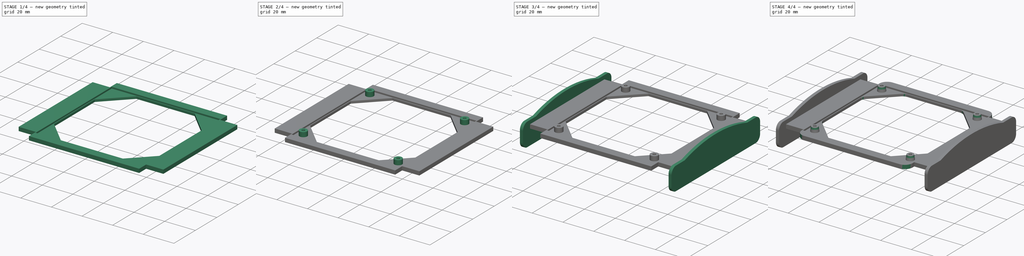
[diagram: build sequence overview — one tinted view per stage of 4, left to right]
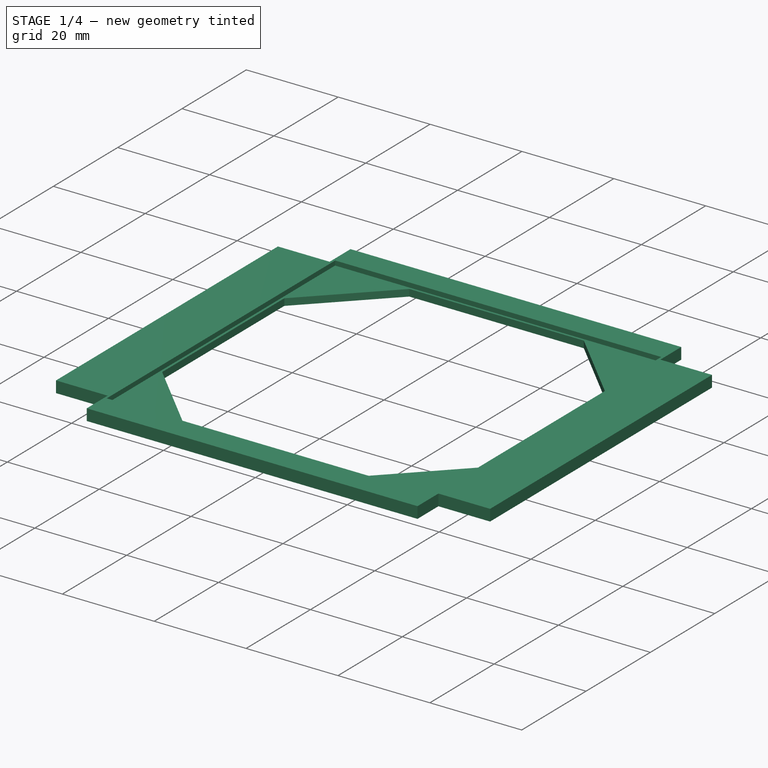
[diagram: stage 1 of 4 — iso view after this stage's code; geometry added in this stage tinted green]
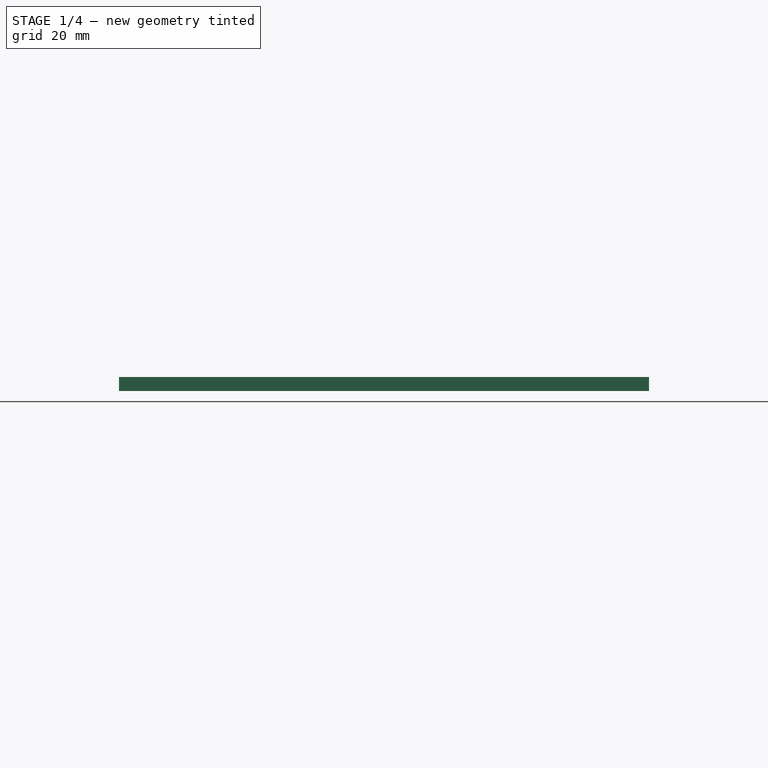
[diagram: stage 1 of 4 — front view after this stage's code; geometry added in this stage tinted green]
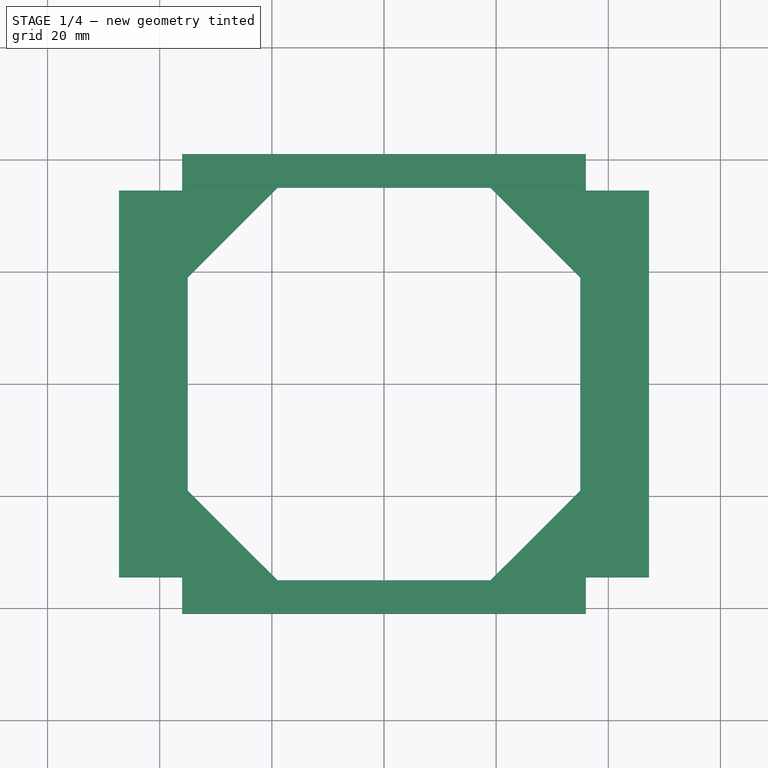
[diagram: stage 1 of 4 — top view after this stage's code; geometry added in this stage tinted green]
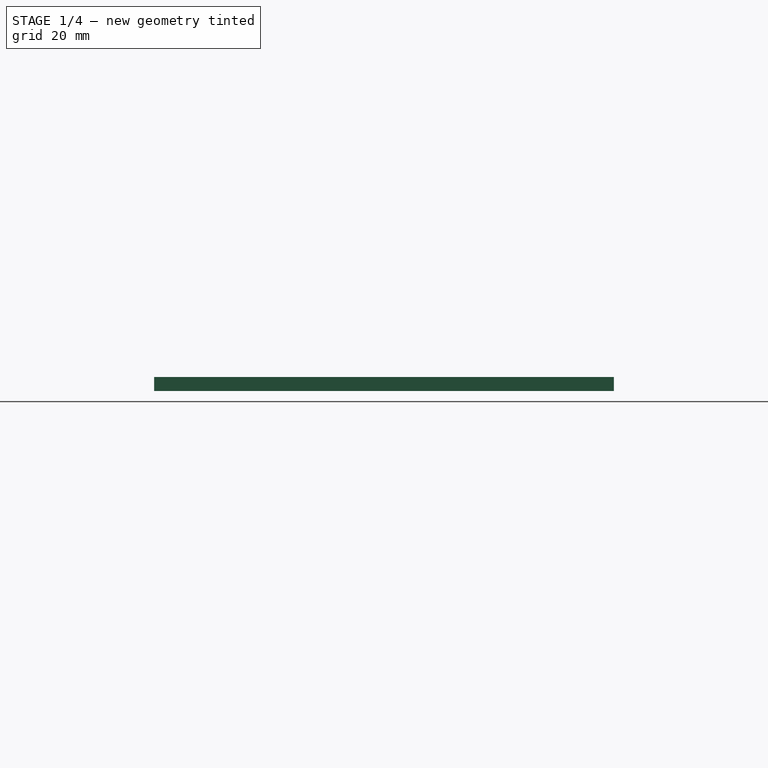
[diagram: stage 1 of 4 — right view after this stage's code; geometry added in this stage tinted green]
FCSTD DOCUMENT  (FreeCAD 0.17R13509 (Git))
Label: Support Fan CoolMaster 70mmx70mm
License: CreativeCommons Attribution-ShareAlike
LicenseURL: http://creativecommons.org/licenses/by-sa/4.0/
objects: Sketcher::SketchObject×5, PartDesign::Pad×3, PartDesign::Pocket×2, PartDesign::Fillet×2, PartDesign::Plane×1, PartDesign::Mirrored×1, PartDesign::Draft×1, PartDesign::Body×1, App::Part×1
note: 21 computed .brp shape members not serialized (recipe doc carries the construction recipe); baked Part::Feature solids carry a one-line shape summary decoded from their .brp

FEATURE [PartDesign::Plane] DatumPlane
  AttachmentOffset = pos=(0,0,45) rot=(0,0,1;0rad)
  MapMode = 5
  Placement = pos=(0,0,45) rot=(0,0,1;0rad)
  Support = -> [XY_Plane003]
FEATURE [Sketcher::SketchObject] Sketch006
  MapMode = 5
  Placement = pos=(0,0,45) rot=(0,0,1;0rad)
  Support = -> [DatumPlane]
  sketch-geometry (20):
    g0: LineSegment StartX=-47.25 StartY=34.5 StartZ=0 EndX=-36 EndY=34.5 EndZ=0
    g1: LineSegment StartX=47.25 StartY=34.5 StartZ=0 EndX=47.25 EndY=-34.5 EndZ=0
    g2: LineSegment StartX=47.25 StartY=-34.5 StartZ=0 EndX=36 EndY=-34.5 EndZ=0
    g3: LineSegment StartX=-47.25 StartY=-34.5 StartZ=0 EndX=-47.25 EndY=34.5 EndZ=0
    g4: LineSegment StartX=-36 StartY=41 StartZ=0 EndX=36 EndY=41 EndZ=0
    g5: LineSegment StartX=36 StartY=41 StartZ=0 EndX=36 EndY=34.5 EndZ=0
    g6: LineSegment StartX=36 StartY=-41 StartZ=0 EndX=-36 EndY=-41 EndZ=0
    g7: LineSegment StartX=-36 StartY=-41 StartZ=0 EndX=-36 EndY=-34.5 EndZ=0
    g8: LineSegment StartX=36 StartY=34.5 StartZ=0 EndX=47.25 EndY=34.5 EndZ=0
    g9: LineSegment StartX=-36 StartY=34.5 StartZ=0 EndX=-36 EndY=41 EndZ=0
    g10: LineSegment StartX=36 StartY=-34.5 StartZ=0 EndX=36 EndY=-41 EndZ=0
    g11: LineSegment StartX=-36 StartY=-34.5 StartZ=0 EndX=-47.25 EndY=-34.5 EndZ=0
    g12: LineSegment StartX=-19 StartY=35 StartZ=0 EndX=19 EndY=35 EndZ=0
    g13: LineSegment StartX=35 StartY=19 StartZ=0 EndX=35 EndY=-19 EndZ=0
    g14: LineSegment StartX=19 StartY=-35 StartZ=0 EndX=-19 EndY=-35 EndZ=0
    g15: LineSegment StartX=-35 StartY=-19 StartZ=0 EndX=-35 EndY=19 EndZ=0
    g16: LineSegment StartX=-35 StartY=19 StartZ=0 EndX=-19 EndY=35 EndZ=0
    g17: LineSegment StartX=19 StartY=35 StartZ=0 EndX=35 EndY=19 EndZ=0
    g18: LineSegment StartX=35 StartY=-19 StartZ=0 EndX=19 EndY=-35 EndZ=0
    g19: LineSegment StartX=-35 StartY=-19 StartZ=0 EndX=-19 EndY=-35 EndZ=0
  constraints (53):
    c: Coincident(g8,g1)
    c: Coincident(g1,g2)
    c: Coincident(g11,g3)
    c: Coincident(g3,g0)
    c: Horizontal(g0)
    c: Horizontal(g2)
    c: Vertical(g1)
    c: Vertical(g3)
    c: Symmetric(g0,g11,g-1)
    c: Symmetric(g8,g0,g-2)
    c: Coincident(g4,g5)
    c: Coincident(g10,g6)
    c: Coincident(g6,g7)
    c: Coincident(g9,g4)
    c: Horizontal(g4)
    c: Horizontal(g6)
    c: Vertical(g5)
    c: Vertical(g7)
    c: Tangent(g0,g8)
    c: Coincident(g9,g0)
    c: Tangent(g7,g9)
    c: Coincident(g5,g8)
    c: Tangent(g5,g10)
    c: Coincident(g2,g10)
    c: Coincident(g11,g7)
    c: Tangent(g2,g11)
    c: Equal(g8,g0)
    c: Equal(g9,g7)
    c: DistanceX(g6,g6) = 72
    c: DistanceX(g3,g1) = 94.5
    c: DistanceY(g1,g1) = 69
    c: DistanceY(g6,g4) = 82
    c: Horizontal(g14)
    c: Vertical(g13)
    c: Vertical(g15)
    c: Coincident(g12,g16)
    c: Coincident(g15,g16)
    c: Coincident(g15,g19)
    c: Coincident(g14,g19)
    c: Coincident(g14,g18)
    c: Coincident(g13,g18)
    c: Coincident(g13,g17)
    c: Coincident(g12,g17)
    c: Symmetric(g12,g12,g-2)
    c: Symmetric(g12,g14,g-1)
    c: Symmetric(g15,g15,g-1)
    c: Symmetric(g12,g14,g-1)
    c: Symmetric(g13,g13,g-1)
    c: Symmetric(g13,g15,g-2)
    c: Angle(g16,g12) = 2.35619
    c: DistanceX(g15,g13) = 70
    c: Equal(g12,g13)
    c: DistanceX(g12,g12) = 38
FEATURE [PartDesign::Pad] Pad001
  Length = 2.5
  Length2 = 100
  Placement = pos=(0,0,45) rot=(0,0,1;0rad)
  Profile = -> Sketch006
  Refine = true
  Type = 0
FEATURE [Sketcher::SketchObject] Sketch007
  MapMode = 5
  Placement = pos=(0,0,47.5) rot=(0,0,1;0rad)
  Support = -> [Pad001]
  sketch-geometry (4):
    g0: LineSegment StartX=-35.5 StartY=35.5 StartZ=0 EndX=35.5 EndY=35.5 EndZ=0
    g1: LineSegment StartX=35.5 StartY=35.5 StartZ=0 EndX=35.5 EndY=-35.5 EndZ=0
    g2: LineSegment StartX=35.5 StartY=-35.5 StartZ=0 EndX=-35.5 EndY=-35.5 EndZ=0
    g3: LineSegment StartX=-35.5 StartY=-35.5 StartZ=0 EndX=-35.5 EndY=35.5 EndZ=0
  constraints (12):
    c: Coincident(g0,g1)
    c: Coincident(g1,g2)
    c: Coincident(g2,g3)
    c: Coincident(g3,g0)
    c: Horizontal(g0)
    c: Horizontal(g2)
    c: Vertical(g1)
    c: Vertical(g3)
    c: Symmetric(g0,g0,g-2)
    c: Symmetric(g0,g2,g-1)
    c: DistanceY(g1,g1) = 71
    c: Equal(g0,g1)
FEATURE [PartDesign::Pocket] Pocket005
  BaseFeature = -> Pad001
  Length = 1
  Length2 = 100
  Placement = pos=(0,0,45) rot=(0,0,1;0rad)
  Profile = -> Sketch007
  Refine = true
  Type = 0
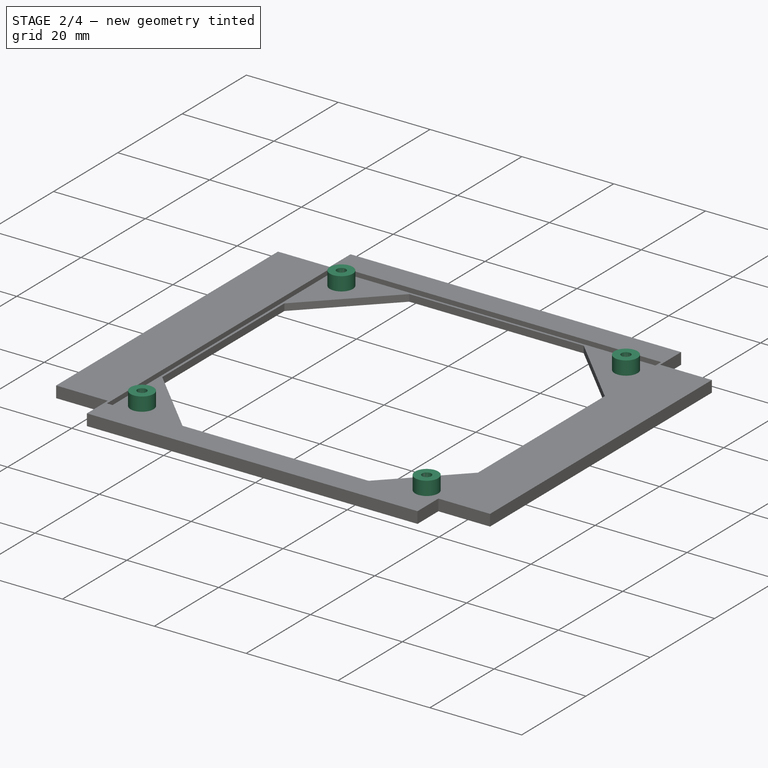
[diagram: stage 2 of 4 — iso view after this stage's code; geometry added in this stage tinted green]
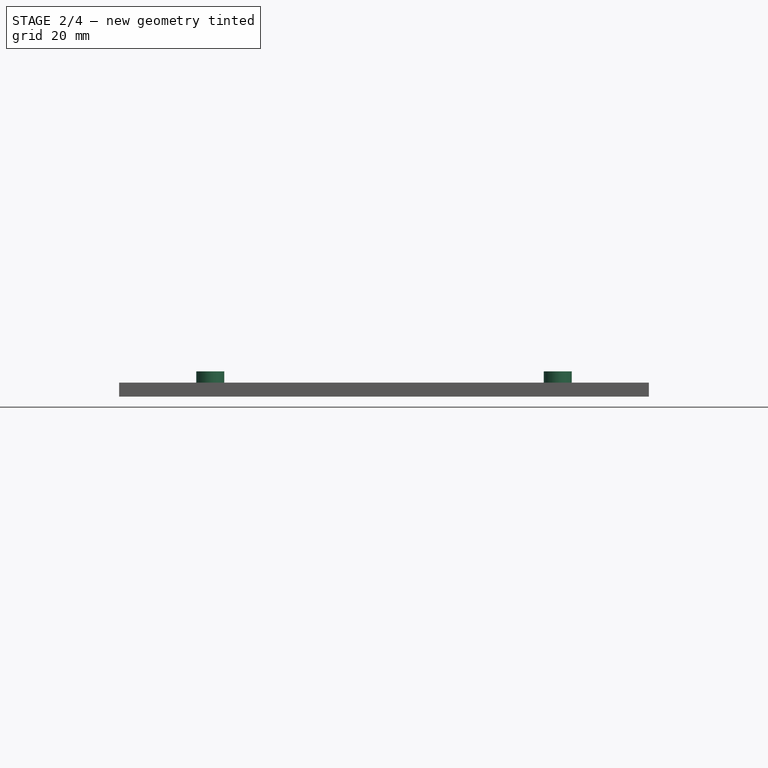
[diagram: stage 2 of 4 — front view after this stage's code; geometry added in this stage tinted green]
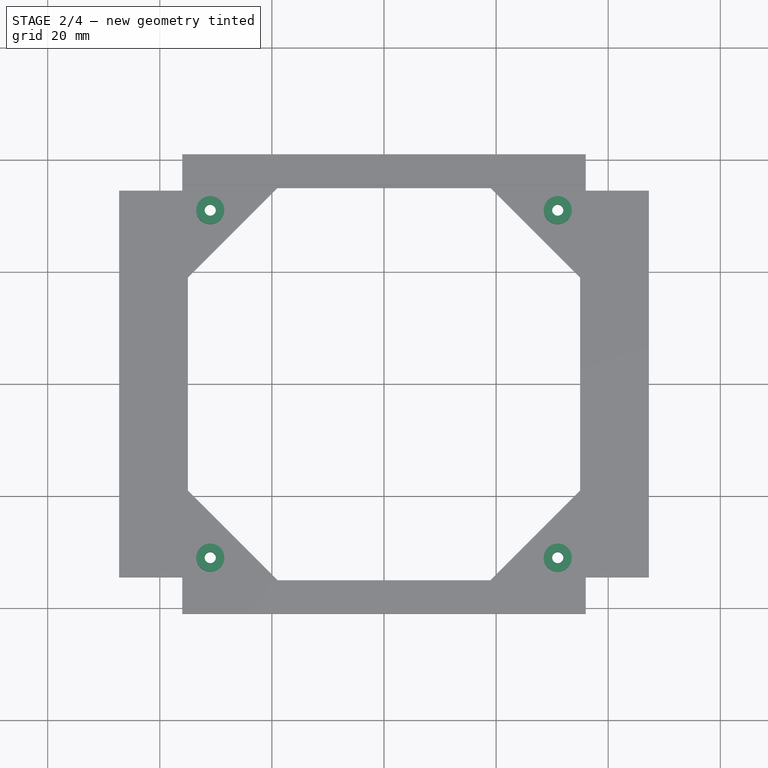
[diagram: stage 2 of 4 — top view after this stage's code; geometry added in this stage tinted green]
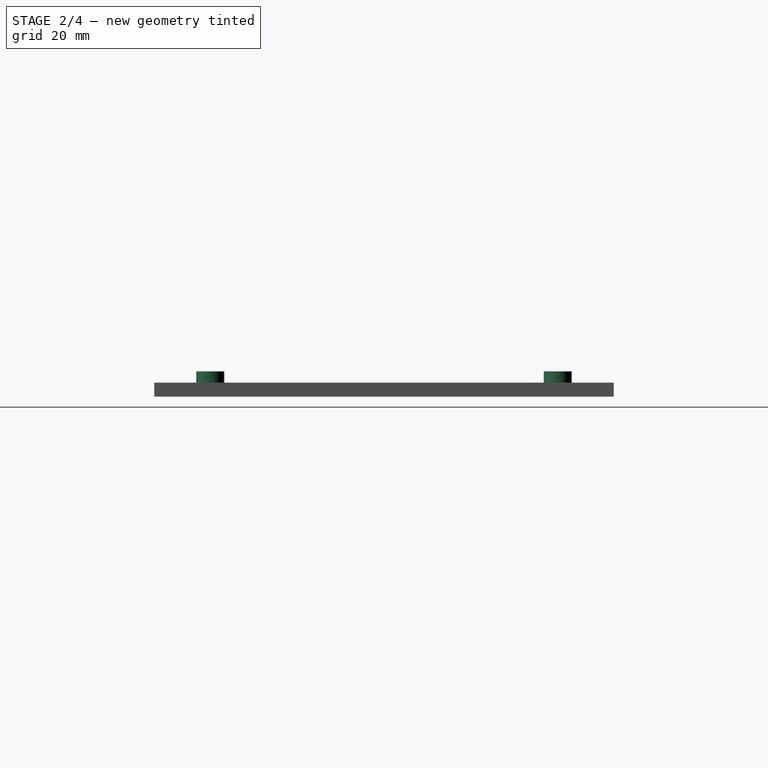
[diagram: stage 2 of 4 — right view after this stage's code; geometry added in this stage tinted green]
FEATURE [Sketcher::SketchObject] Sketch008
  MapMode = 5
  Placement = pos=(0,0,46.5) rot=(0,0,1;0rad)
  Support = -> [Pocket005]
  sketch-geometry (8):
    g0: LineSegment [constr] StartX=-31 StartY=31 StartZ=0 EndX=31 EndY=31 EndZ=0
    g1: LineSegment [constr] StartX=31 StartY=31 StartZ=0 EndX=31 EndY=-31 EndZ=0
    g2: LineSegment [constr] StartX=31 StartY=-31 StartZ=0 EndX=-31 EndY=-31 EndZ=0
    g3: LineSegment [constr] StartX=-31 StartY=-31 StartZ=0 EndX=-31 EndY=31 EndZ=0
    g4: Circle CenterX=-31 CenterY=31 CenterZ=0 NormalX=0 NormalY=0 NormalZ=1 AngleXU=0 Radius=2.5
    g5: Circle CenterX=31 CenterY=31 CenterZ=0 NormalX=0 NormalY=0 NormalZ=1 AngleXU=0 Radius=2.5
    g6: Circle CenterX=31 CenterY=-31 CenterZ=0 NormalX=0 NormalY=0 NormalZ=1 AngleXU=0 Radius=2.5
    g7: Circle CenterX=-31 CenterY=-31 CenterZ=0 NormalX=0 NormalY=0 NormalZ=1 AngleXU=0 Radius=2.5
  constraints (20):
    c: Coincident(g0,g1)
    c: Coincident(g1,g2)
    c: Coincident(g2,g3)
    c: Coincident(g3,g0)
    c: Horizontal(g0)
    c: Horizontal(g2)
    c: Vertical(g1)
    c: Vertical(g3)
    c: Symmetric(g0,g0,g-2)
    c: Symmetric(g0,g2,g-1)
    c: Coincident(g4,g0)
    c: Coincident(g5,g0)
    c: Coincident(g6,g1)
    c: Coincident(g7,g2)
    c: Equal(g4,g5)
    c: Equal(g5,g6)
    c: Equal(g6,g7)
    c: Radius(g4) = 2.5
    c: DistanceX(g0,g0) = 62
    c: Equal(g3,g0)
FEATURE [PartDesign::Pad] Pad002
  BaseFeature = -> Pocket005
  Length = 3
  Length2 = 100
  Placement = pos=(0,0,45) rot=(0,0,1;0rad)
  Profile = -> Sketch008
  Refine = true
  Type = 0
FEATURE [Sketcher::SketchObject] Sketch009
  ExternalGeometry = -> [Pad002]
  MapMode = 5
  Placement = pos=(0,0,49.5) rot=(0,0,1;0rad)
  Support = -> [Pad002]
  sketch-geometry (4):
    g0: Circle CenterX=-31 CenterY=31 CenterZ=0 NormalX=0 NormalY=0 NormalZ=1 AngleXU=0 Radius=1
    g1: Circle CenterX=31 CenterY=31 CenterZ=0 NormalX=0 NormalY=0 NormalZ=1 AngleXU=0 Radius=1
    g2: Circle CenterX=31 CenterY=-31 CenterZ=0 NormalX=0 NormalY=0 NormalZ=1 AngleXU=0 Radius=1
    g3: Circle CenterX=-31 CenterY=-31 CenterZ=0 NormalX=0 NormalY=0 NormalZ=1 AngleXU=0 Radius=1
  constraints (8):
    c: Coincident(g0,g-3)
    c: Coincident(g1,g-4)
    c: Coincident(g2,g-5)
    c: Coincident(g3,g-6)
    c: Equal(g3,g0)
    c: Equal(g0,g1)
    c: Equal(g1,g2)
    c: Radius(g0) = 1
FEATURE [PartDesign::Pocket] Pocket006
  BaseFeature = -> Pad002
  Length = 5
  Length2 = 100
  Placement = pos=(0,0,45) rot=(0,0,1;0rad)
  Profile = -> Sketch009
  Refine = true
  Type = 1
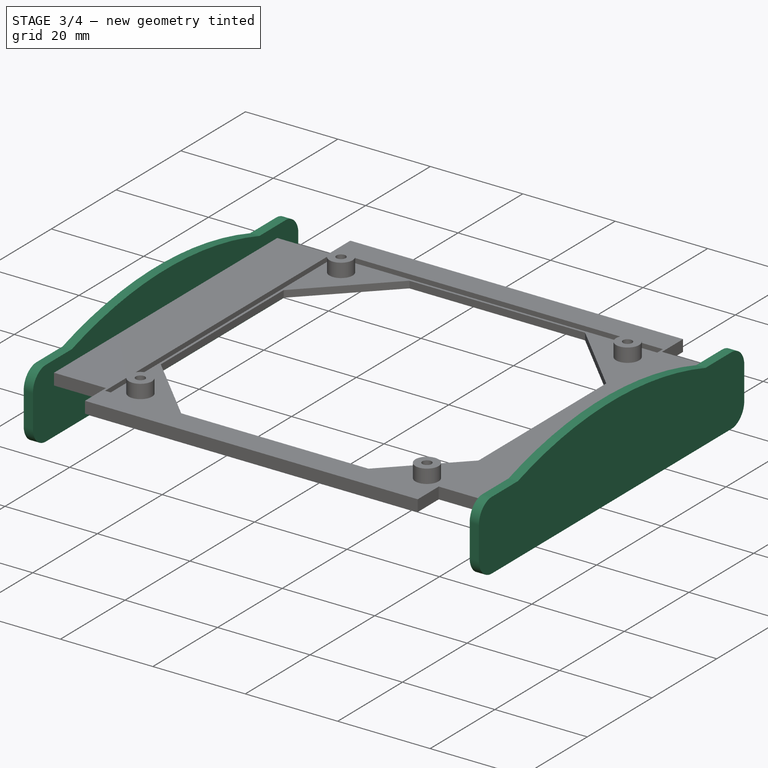
[diagram: stage 3 of 4 — iso view after this stage's code; geometry added in this stage tinted green]
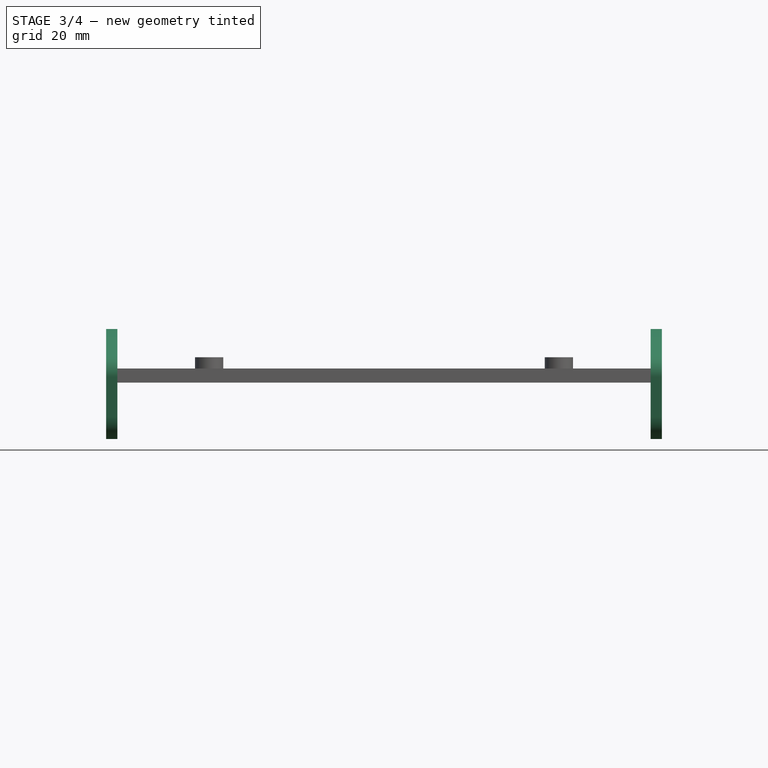
[diagram: stage 3 of 4 — front view after this stage's code; geometry added in this stage tinted green]
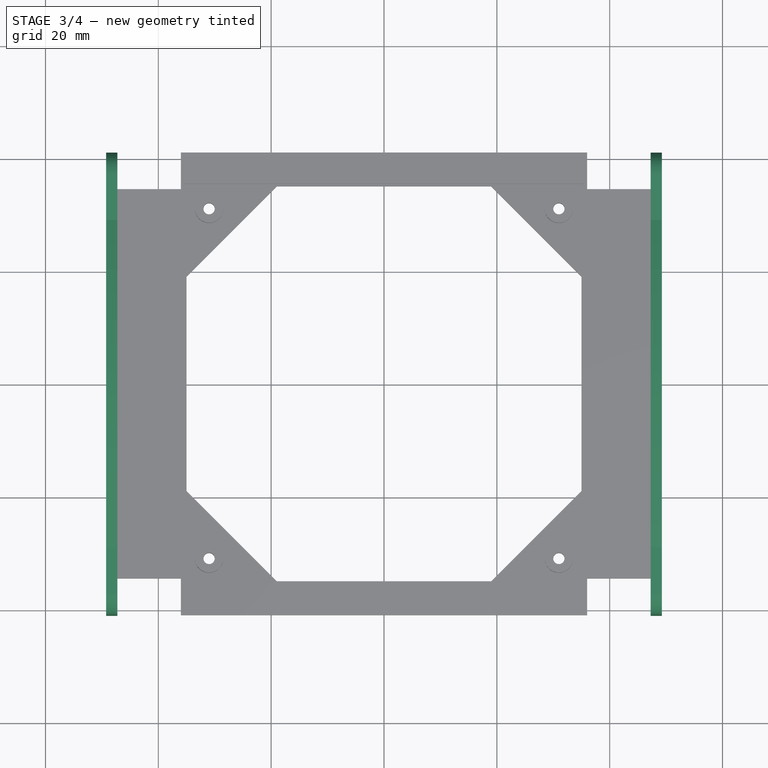
[diagram: stage 3 of 4 — top view after this stage's code; geometry added in this stage tinted green]
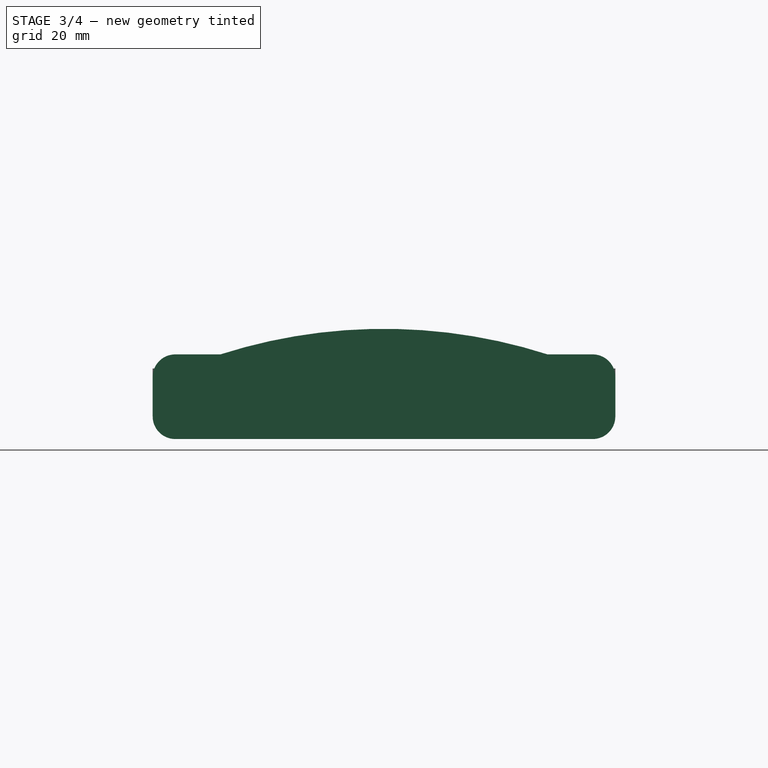
[diagram: stage 3 of 4 — right view after this stage's code; geometry added in this stage tinted green]
FEATURE [Sketcher::SketchObject] Sketch010
  MapMode = 5
  Placement = pos=(47.25,0,45) rot=(0.57735,0.57735,0.57735;2.0944rad)
  Support = -> [Pocket006]
  sketch-geometry (7):
    g0: LineSegment [constr] StartX=-41 StartY=5 StartZ=0 EndX=41 EndY=5 EndZ=0
    g1: LineSegment StartX=41 StartY=5 StartZ=0 EndX=41 EndY=-10 EndZ=0
    g2: LineSegment StartX=41 StartY=-10 StartZ=0 EndX=-41 EndY=-10 EndZ=0
    g3: LineSegment StartX=-41 StartY=-10 StartZ=0 EndX=-41 EndY=5 EndZ=0
    g4: LineSegment StartX=-41 StartY=5 StartZ=0 EndX=-29 EndY=5 EndZ=0
    g5: LineSegment StartX=41 StartY=5 StartZ=0 EndX=29 EndY=5 EndZ=0
    g6: ArcOfCircle CenterX=0 CenterY=-85.4655 CenterZ=0 NormalX=0 NormalY=0 NormalZ=1 AngleXU=0 Radius=95 StartAngle=1.26058 EndAngle=1.88101
  constraints (22):
    c: Coincident(g0,g1)
    c: Coincident(g1,g2)
    c: Coincident(g2,g3)
    c: Coincident(g3,g0)
    c: Horizontal(g0)
    c: Horizontal(g2)
    c: Vertical(g1)
    c: Vertical(g3)
    c: Symmetric(g1,g2,g-2)
    c: DistanceX(g2,g2) = 82
    c: DistanceY(g2,g-1) = 10
    c: DistanceY(g3,g3) = 15
    c: Horizontal(g4)
    c: PointOnObject(g5,g0)
    c: Horizontal(g5)
    c: Equal(g5,g4)
    c: Coincident(g0,g5)
    c: Coincident(g6,g4)
    c: Coincident(g6,g5)
    c: Coincident(g4,g0)
    c: DistanceX(g5,g5) = 12
    c: Radius(g6) = 95
FEATURE [PartDesign::Pad] Pad003
  BaseFeature = -> Pocket006
  Length = 2
  Length2 = 100
  Placement = pos=(0,0,45) rot=(0,0,1;0rad)
  Profile = -> Sketch010
  Refine = true
  Type = 0
FEATURE [PartDesign::Mirrored] Mirrored005
  BaseFeature = -> Pad003
  MirrorPlane = -> YZ_Plane003
  Originals = -> [Pad003]
  Placement = pos=(0,0,45) rot=(0,0,1;0rad)
  Refine = true
FEATURE [PartDesign::Fillet] Fillet002
  Base = -> Mirrored005 [Edge118,Edge114,Edge110,Edge109,Edge106,Edge102,Edge97,Edge98]
  BaseFeature = -> Mirrored005
  Placement = pos=(0,0,45) rot=(0,0,1;0rad)
  Radius = 4
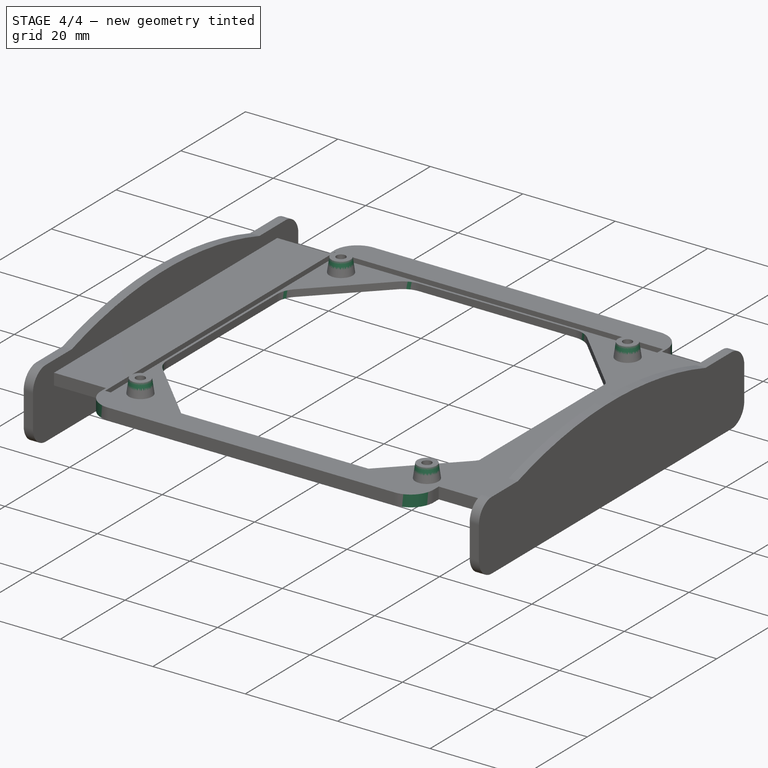
[diagram: stage 4 of 4 — iso view after this stage's code; geometry added in this stage tinted green]
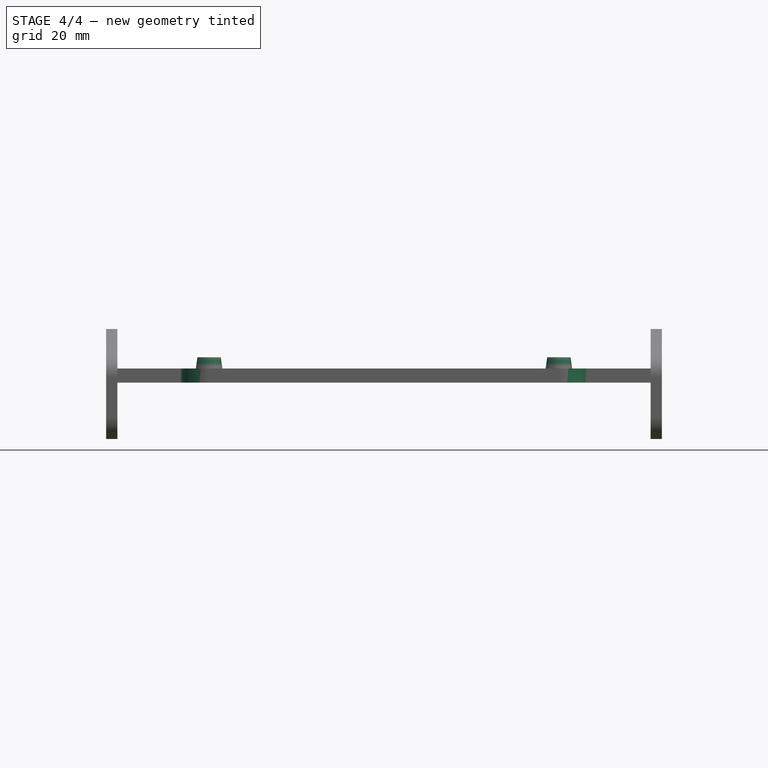
[diagram: stage 4 of 4 — front view after this stage's code; geometry added in this stage tinted green]
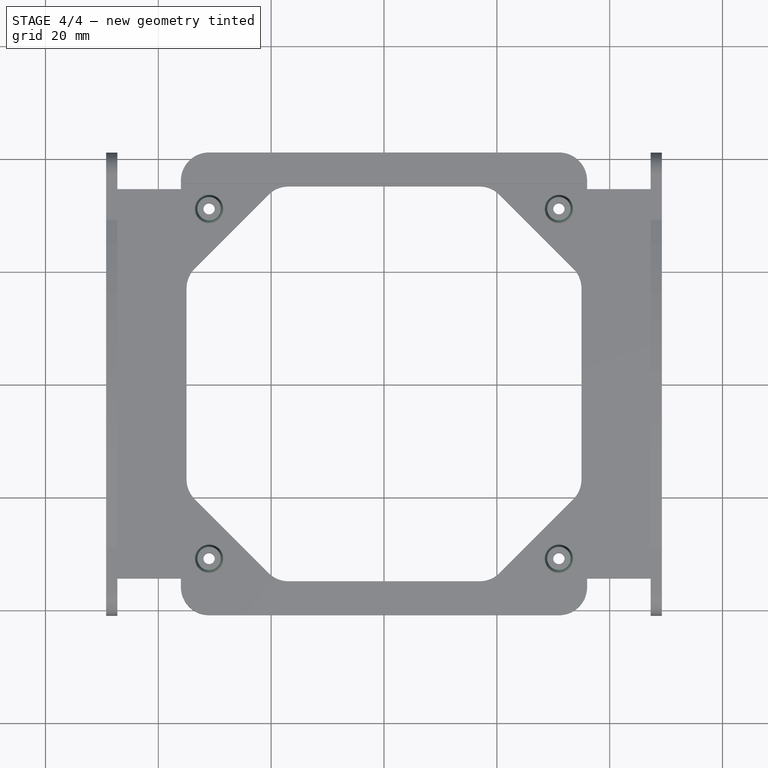
[diagram: stage 4 of 4 — top view after this stage's code; geometry added in this stage tinted green]
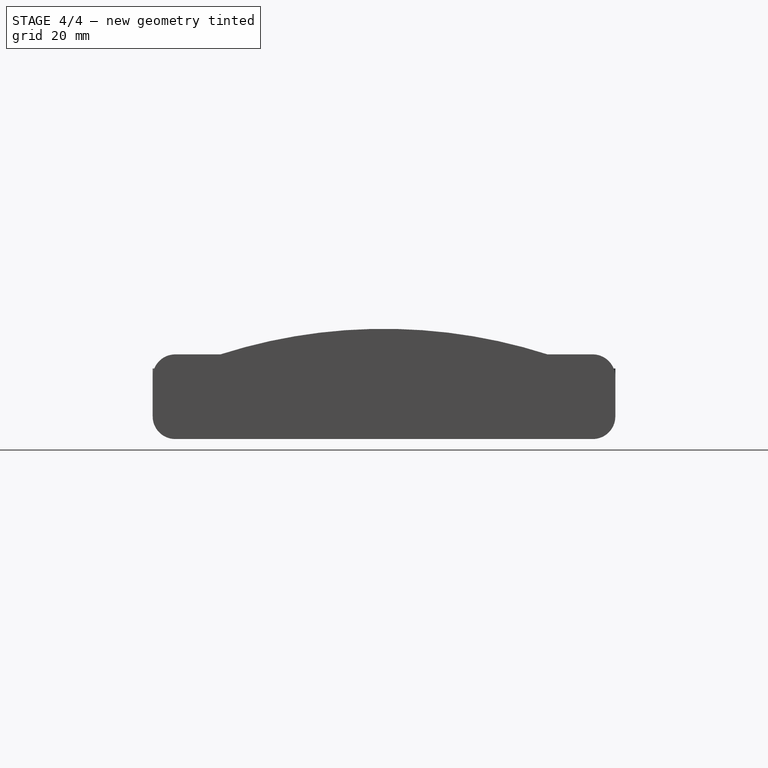
[diagram: stage 4 of 4 — right view after this stage's code; geometry added in this stage tinted green]
FEATURE [PartDesign::Fillet] Fillet003
  Base = -> Fillet002 [Edge77,Edge75,Edge76,Edge79,Edge106,Edge109,Edge105,Edge101,Edge95,Edge97,Edge98,Edge102]
  BaseFeature = -> Fillet002
  Placement = pos=(0,0,45) rot=(0,0,1;0rad)
  Radius = 5
FEATURE [PartDesign::Draft] Draft
  Angle = 8
  Base = -> Fillet003 [Face73,Face71,Face70,Face72]
  BaseFeature = -> Fillet003
  NeutralPlane = -> Fillet003 [Face63]
  Placement = pos=(0,0,45) rot=(0,0,1;0rad)
  PullDirection = -> Fillet003 [Edge192]
FEATURE [PartDesign::Body] Body001
  Group = -> [DatumPlane,Sketch006,Pad001,Sketch007,Pocket005,Sketch008,Pad002,Sketch009,Pocket006,Sketch010,Pad003,Mirrored005,Fillet002,Fillet003,Draft]
  Origin = -> Origin003
  Tip = -> Draft
FEATURE [App::Part] Part001  label="Soporte"
  Group = -> [Body001]
  License = CC BY 3.0
  LicenseURL = http://creativecommons.org/licenses/by/3.0/
  Origin = -> Origin002
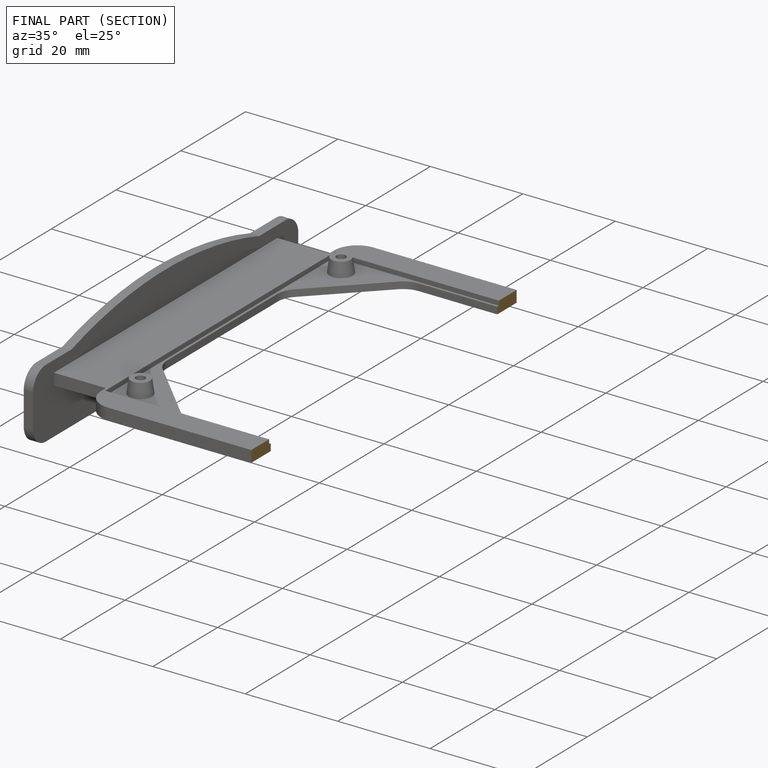
[diagram: finished part — half-section view (interior)]
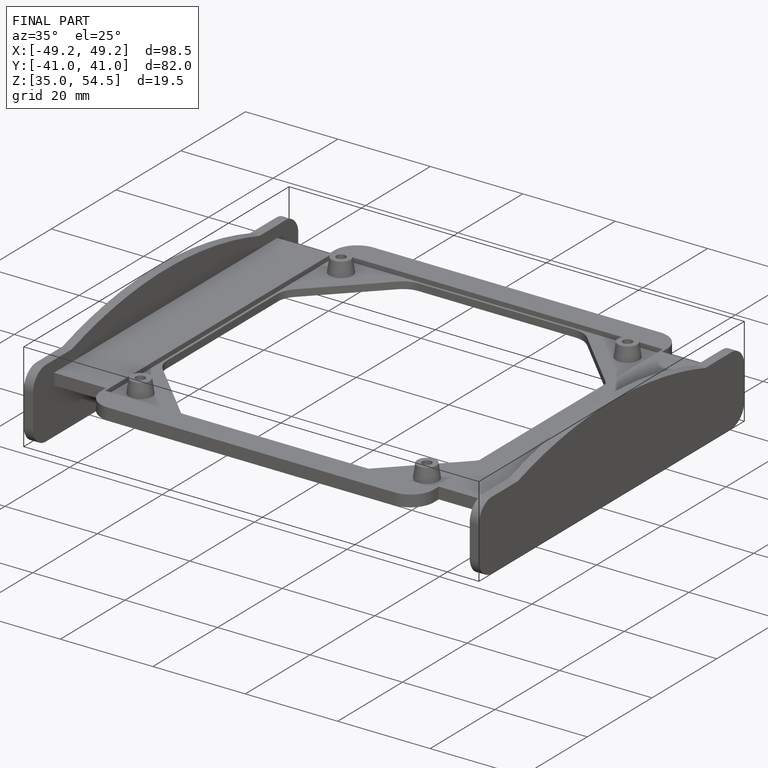
[diagram: finished part — iso view with bounding-box wireframe]
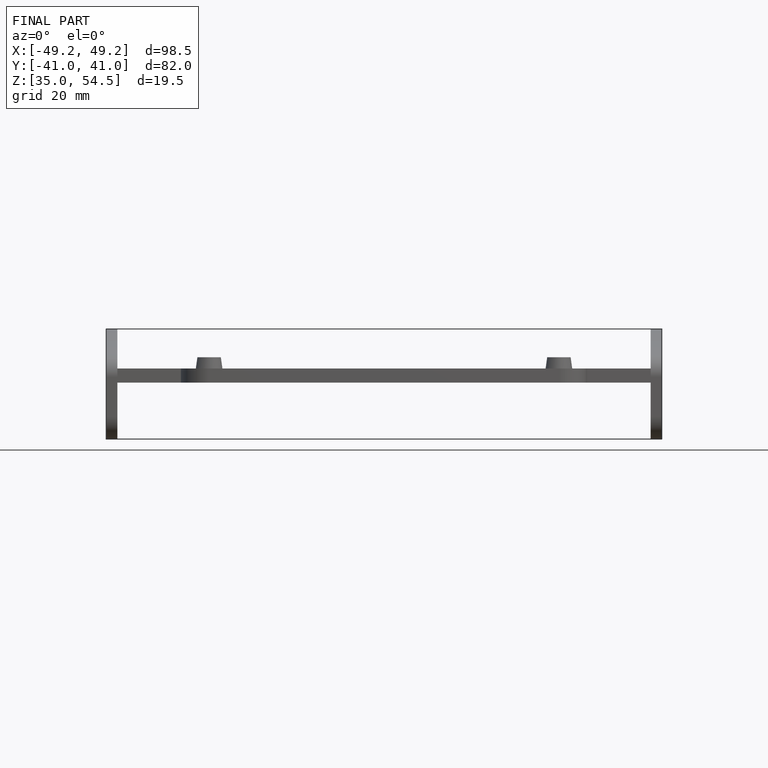
[diagram: finished part — front view with bounding-box wireframe]
